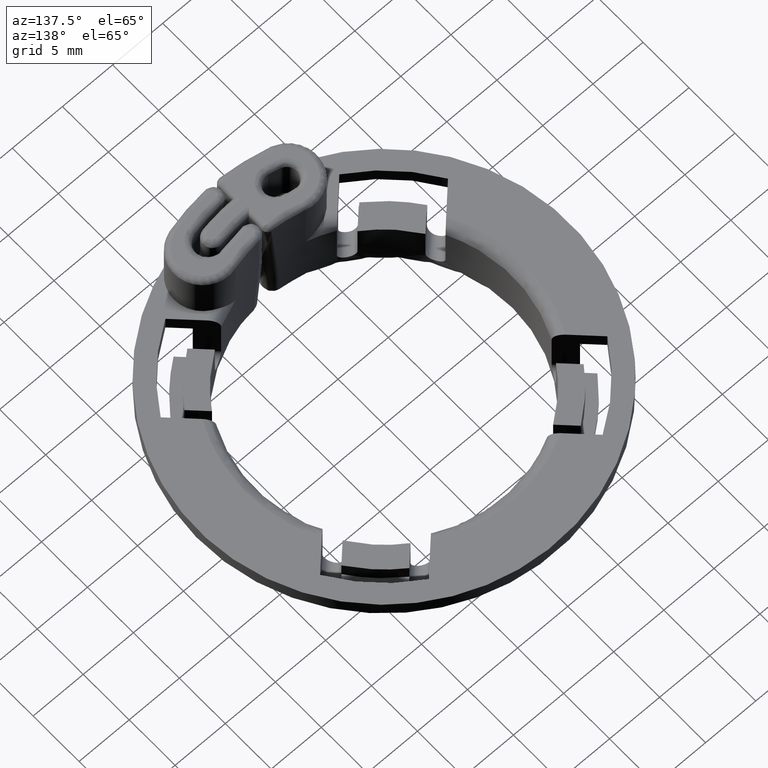
[diagram: clean part render]
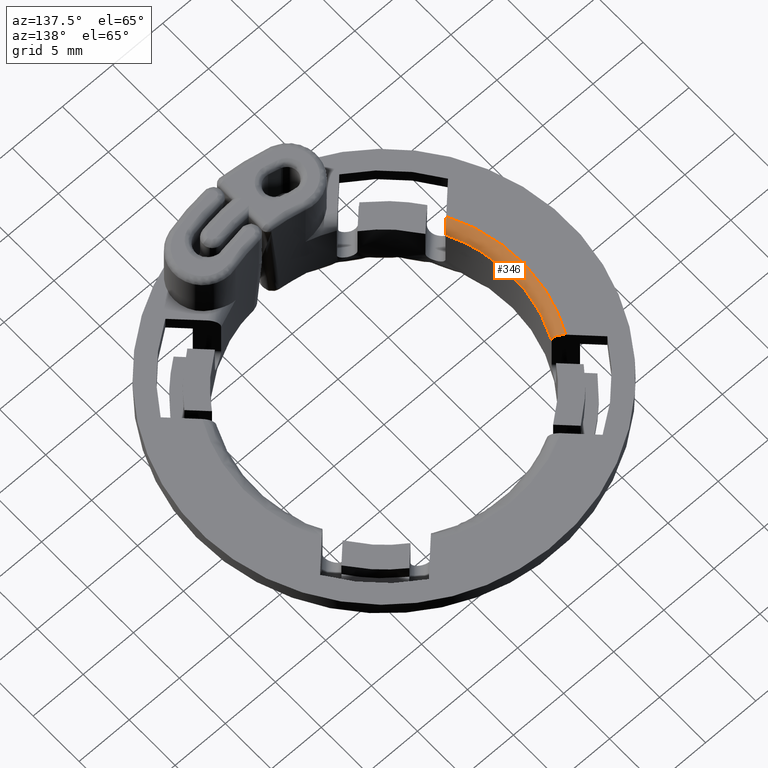
[diagram: same view with one face highlighted and labeled with its STEP entity id]
A machine part, auxiliary view. The second image highlights one B-rep face of the part: STEP entity #346.
In plain terms, the highlighted face is a freeform B-spline surface patch.
Its self-contained STEP definition (entity closure, byte-faithful):
#236=CARTESIAN_POINT('',(-10.992778149344463,-6.562073050194615,6.430462860672248));
#237=CARTESIAN_POINT('',(-14.909968338310147,-1.550428E-013,6.430462860672249));
#238=CARTESIAN_POINT('',(-10.992778149344462,6.562073050194305,6.430462860672248));
#239=CARTESIAN_POINT('',(-10.924122484623554,-6.521089462507537,7.577537403011029));
#240=CARTESIAN_POINT('',(-14.816847766483141,-1.554371E-013,7.577537403011029));
#241=CARTESIAN_POINT('',(-10.924122484623553,6.521089462507225,7.577537403011029));
#242=CARTESIAN_POINT('',(-11.909056205560049,-7.109039745736945,7.497579349930935));
#243=CARTESIAN_POINT('',(-16.152754886138130,-1.555353E-013,7.497579349930933));
#244=CARTESIAN_POINT('',(-11.909056205560049,7.109039745736631,7.497579349930935));
#252=(BOUNDED_SURFACE()B_SPLINE_SURFACE(2,2,((#236,#239,#242),(#237,#240,#243),(#238,#241,#244)),.UNSPECIFIED.,.F.,.F.,.U.)B_SPLINE_SURFACE_WITH_KNOTS((3,3),(3,3),(0.0,15.299374964841331),(0.0,1.822374218425520),.UNSPECIFIED.)GEOMETRIC_REPRESENTATION_ITEM()RATIONAL_B_SPLINE_SURFACE(((0.854318087481450,0.560624806464518,0.854318162795084),(0.733558869156158,0.481379599796816,0.733558933824090),(0.854318087481450,0.560624806464518,0.854318162795084)))REPRESENTATION_ITEM('')SURFACE());
#253=CARTESIAN_POINT('',(-12.167591969634580,6.510737720142159,7.500000000000000));
#254=VERTEX_POINT('',#253);
#255=CARTESIAN_POINT('',(-11.426101228828021,5.769246979335611,6.500000000000000));
#256=VERTEX_POINT('',#255);
#257=CARTESIAN_POINT('',(-12.167591969634580,6.510737720142159,7.500000000000000));
#258=CARTESIAN_POINT('',(-12.119780440882719,6.462926191390300,7.500000000000000));
#259=CARTESIAN_POINT('',(-12.072714177819989,6.415859928327576,7.493777658786467));
#260=CARTESIAN_POINT('',(-12.003187562876230,6.346333313383820,7.475487339845343));
#261=CARTESIAN_POINT('',(-11.980192099472580,6.323337849980170,7.467887092927845));
#262=CARTESIAN_POINT('',(-11.934569048801491,6.277714799309071,7.449615142997301));
#263=CARTESIAN_POINT('',(-11.911823626650291,6.254969377157877,7.438872616042461));
#264=CARTESIAN_POINT('',(-11.845279856347450,6.188425606855041,7.402452192437279));
#265=CARTESIAN_POINT('',(-11.803077882537330,6.146223633044919,7.372674175902044));
#266=CARTESIAN_POINT('',(-11.742997507780199,6.086143258287790,7.319806921958180));
#267=CARTESIAN_POINT('',(-11.723511490485111,6.066657240992694,7.300808443522863));
#268=CARTESIAN_POINT('',(-11.685665549568791,6.028811300076381,7.259946015791162));
#269=CARTESIAN_POINT('',(-11.667341450312041,6.010487200819628,7.238091329330482));
#270=CARTESIAN_POINT('',(-11.615320622414490,5.958466372922075,7.169645163756441));
#271=CARTESIAN_POINT('',(-11.584112522507510,5.927258273015100,7.119754460367429));
#272=CARTESIAN_POINT('',(-11.542635696623890,5.885781447131481,7.038373149373199));
#273=CARTESIAN_POINT('',(-11.529661284016591,5.872807034524179,7.010037486855071));
#274=CARTESIAN_POINT('',(-11.505805922269021,5.848951672776614,6.951531302135273));
#275=CARTESIAN_POINT('',(-11.495036704111021,5.838182454618613,6.921661470438478));
#276=CARTESIAN_POINT('',(-11.466129799511860,5.809275550019445,6.830241493064826));
#277=CARTESIAN_POINT('',(-11.451358130567661,5.794503881075247,6.766899355836769));
#278=CARTESIAN_POINT('',(-11.436269892759460,5.779415643267048,6.668122632943954));
#279=CARTESIAN_POINT('',(-11.432448732004451,5.775594482512044,6.634602506339206));
#280=CARTESIAN_POINT('',(-11.427377776148070,5.770523526655663,6.567546376818053));
#281=CARTESIAN_POINT('',(-11.426101228827919,5.769246979335510,6.533855654999938));
#282=CARTESIAN_POINT('',(-11.426101228828021,5.769246979335611,6.500000000000000));
#283=B_SPLINE_CURVE_WITH_KNOTS('',3,(#257,#258,#259,#260,#261,#262,#263,#264,#265,#266,#267,#268,#269,#270,#271,#272,#273,#274,#275,#276,#277,#278,#279,#280,#281,#282),.UNSPECIFIED.,.F.,.U.,(4,2,2,2,2,2,2,2,2,2,2,2,4),(0.0,0.125000000000000,0.187499999999999,0.249999999999999,0.375000000000001,0.437500000000002,0.500000000000003,0.625000000000003,0.687500000000003,0.750000000000002,0.875000000000001,0.937500000000001,1.0),.UNSPECIFIED.);
#284=EDGE_CURVE('',#254,#256,#283,.T.);
#285=ORIENTED_EDGE('',*,*,#284,.F.);
#286=CARTESIAN_POINT('',(-12.167591969634620,-6.510737720142389,7.500000000000000));
#287=VERTEX_POINT('',#286);
#288=CARTESIAN_POINT('',(-12.167591969634630,-6.510737720142396,7.500000000000000));
#289=CARTESIAN_POINT('',(-15.651412413833512,-1.051451E-013,7.499999999999999));
#290=CARTESIAN_POINT('',(-12.167591969634580,6.510737720142164,7.500000000000000));
#298=(BOUNDED_CURVE()B_SPLINE_CURVE(2,(#288,#289,#290),.UNSPECIFIED.,.F.,.U.)CURVE()GEOMETRIC_REPRESENTATION_ITEM()QUASI_UNIFORM_CURVE()RATIONAL_B_SPLINE_CURVE((1.0,0.881709563017000,1.0))REPRESENTATION_ITEM(''));
#299=EDGE_CURVE('',#287,#254,#298,.T.);
#300=ORIENTED_EDGE('',*,*,#299,.F.);
#301=CARTESIAN_POINT('',(-11.426101228827919,-5.769246979335651,6.500000000000000));
#302=VERTEX_POINT('',#301);
#303=CARTESIAN_POINT('',(-11.426101228827919,-5.769246979335651,6.500000000000000));
#304=CARTESIAN_POINT('',(-11.426101228828101,-5.769246979335752,6.567647095884821));
#305=CARTESIAN_POINT('',(-11.431158380375800,-5.774304130883553,6.634061738244109));
#306=CARTESIAN_POINT('',(-11.445971507933130,-5.789117258440878,6.731922347625996));
#307=CARTESIAN_POINT('',(-11.452123191067400,-5.795268941575152,6.764246699134326));
#308=CARTESIAN_POINT('',(-11.466905832949431,-5.810051583457181,6.828291190087756));
#309=CARTESIAN_POINT('',(-11.475522326615350,-5.818668077123101,6.859877222544127));
#310=CARTESIAN_POINT('',(-11.504459815817690,-5.847605566325442,6.951597723853352));
#311=CARTESIAN_POINT('',(-11.527991035897900,-5.871136786405654,7.009421104474194));
#312=CARTESIAN_POINT('',(-11.569535812130640,-5.912681562638388,7.091258073424378));
#313=CARTESIAN_POINT('',(-11.584497660116130,-5.927643410623885,7.117794621797252));
#314=CARTESIAN_POINT('',(-11.615893427416131,-5.959039177923889,7.168132073524800));
#315=CARTESIAN_POINT('',(-11.648877897679469,-5.992023648187225,7.216004070251394));
#316=CARTESIAN_POINT('',(-11.684939901084880,-6.028085651592637,7.259100146210651));
#317=CARTESIAN_POINT('',(-11.722536259535060,-6.065682010042824,7.299815107886321));
#318=CARTESIAN_POINT('',(-11.742197489794480,-6.085343240302241,7.319063682396068));
#319=CARTESIAN_POINT('',(-11.802819251180329,-6.145965001688090,7.372523357110090));
#320=CARTESIAN_POINT('',(-11.845073988332979,-6.188219738840748,7.402283215197688));
#321=CARTESIAN_POINT('',(-11.911092244566939,-6.254237995074705,7.438499940488064));
#322=CARTESIAN_POINT('',(-11.933540932188389,-6.276686682696159,7.449157974003590));
#323=CARTESIAN_POINT('',(-11.979340981190530,-6.322486731698302,7.467589806283244));
#324=CARTESIAN_POINT('',(-12.002623770245220,-6.345769520752989,7.475320347807674));
#325=CARTESIAN_POINT('',(-12.072608142632291,-6.415753893140061,7.493786625723620));
#326=CARTESIAN_POINT('',(-12.119817993554481,-6.462963744062242,7.500000000000004));
#327=CARTESIAN_POINT('',(-12.167591969634641,-6.510737720142400,7.500000000000000));
#328=B_SPLINE_CURVE_WITH_KNOTS('',3,(#303,#304,#305,#306,#307,#308,#309,#310,#311,#312,#313,#314,#315,#316,#317,#318,#319,#320,#321,#322,#323,#324,#325,#326,#327),.UNSPECIFIED.,.F.,.U.,(4,2,2,2,2,2,1,2,2,2,2,2,4),(0.0,0.124999999999999,0.187499999999999,0.249999999999998,0.375000000000000,0.437500000000000,0.500000000000000,0.562500000000001,0.625000000000001,0.750000000000001,0.812500000000000,0.875000000000000,1.0),.UNSPECIFIED.);
#329=EDGE_CURVE('',#302,#287,#328,.T.);
#330=ORIENTED_EDGE('',*,*,#329,.F.);
#331=CARTESIAN_POINT('',(-11.426101228828021,5.769246979335615,6.500000000000000));
#332=CARTESIAN_POINT('',(-14.339099288445963,-3.749084E-014,6.500000000000000));
#333=CARTESIAN_POINT('',(-11.426101228827919,-5.769246979335651,6.500000000000000));
#341=(BOUNDED_CURVE()B_SPLINE_CURVE(2,(#331,#332,#333),.UNSPECIFIED.,.F.,.U.)CURVE()GEOMETRIC_REPRESENTATION_ITEM()QUASI_UNIFORM_CURVE()RATIONAL_B_SPLINE_CURVE((1.0,0.892664158502192,1.0))REPRESENTATION_ITEM(''));
#342=EDGE_CURVE('',#256,#302,#341,.T.);
#343=ORIENTED_EDGE('',*,*,#342,.F.);
#344=EDGE_LOOP('',(#285,#300,#330,#343));
#345=FACE_OUTER_BOUND('',#344,.T.);
#346=ADVANCED_FACE('',(#345),#252,.T.);